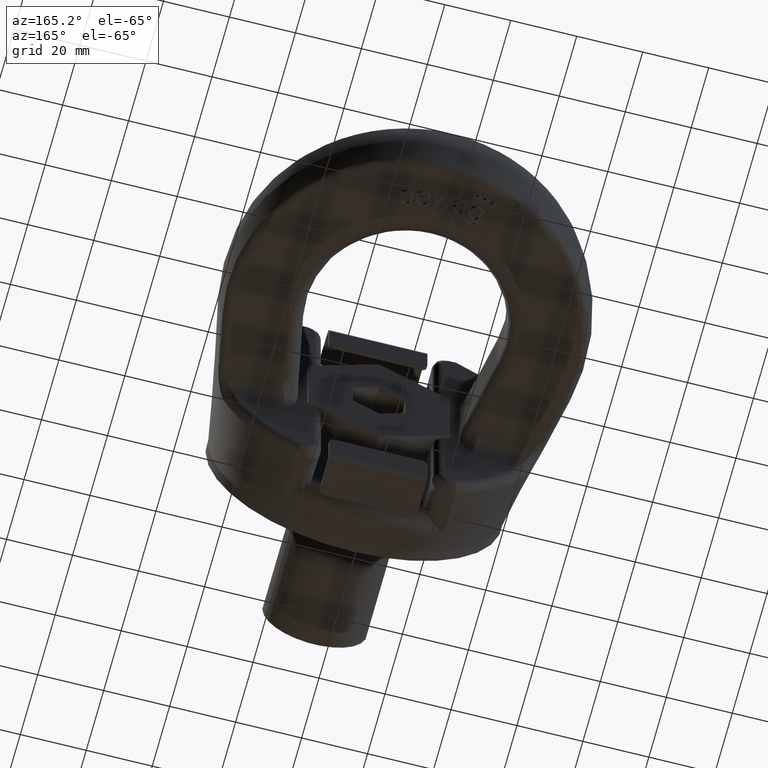
[diagram: clean part render]
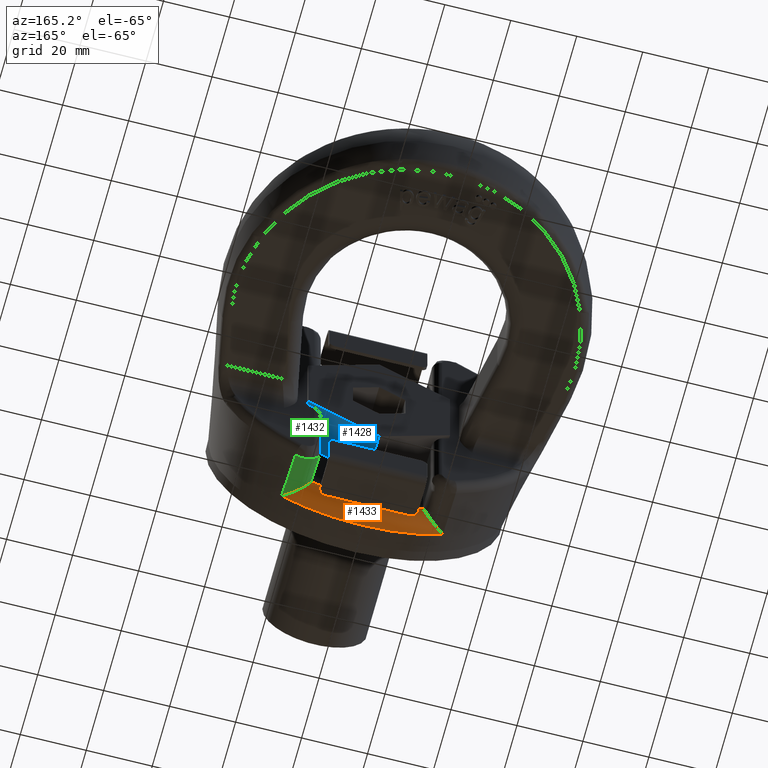
[diagram: same view with three faces highlighted in distinct colors, each labeled with its STEP entity id]
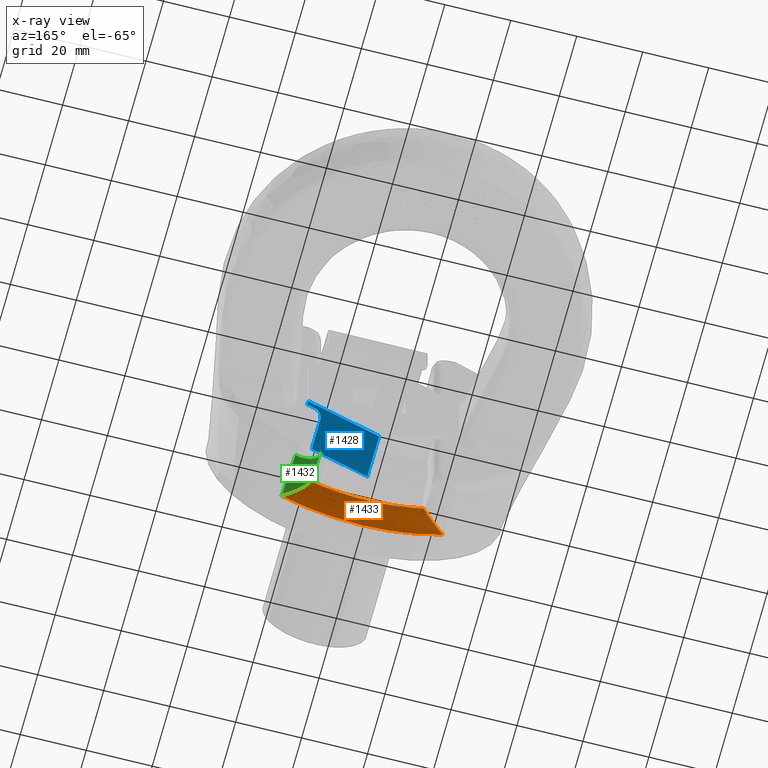
[diagram: x-ray of the same camera — body ghosted, the three highlighted faces saturated]
A machine part, auxiliary view with three faces highlighted in distinct colors.
The next image is the same camera in x-ray (body ghosted, the three faces saturated) — at least one of them is partly hidden behind the body in this view.
Their STEP definitions:

[orange] entity #1433 — the highlighted toroidal blend (fillet) surface has major radius 41.385 mm and minor (blend) radius 5 mm.
#1019=TOROIDAL_SURFACE('',#5260,41.3850144540039,5.);
#1201=FACE_OUTER_BOUND('',#1964,.T.);
#1433=ADVANCED_FACE('',(#1201),#1019,.T.);
#1678=CIRCLE('',#5136,46.2902123631855);
#1714=CIRCLE('',#5251,41.3850144540039);
#1964=EDGE_LOOP('',(#3373,#3374,#3375,#3376));
#3373=ORIENTED_EDGE('',*,*,#4641,.T.);
#3374=ORIENTED_EDGE('',*,*,#4628,.F.);
#3375=ORIENTED_EDGE('',*,*,#4643,.T.);
#3376=ORIENTED_EDGE('',*,*,#4377,.F.);
#3987=VERTEX_POINT('',#6788);
#3988=VERTEX_POINT('',#6790);
#4144=VERTEX_POINT('',#8346);
#4145=VERTEX_POINT('',#8348);
#4377=EDGE_CURVE('',#3987,#3988,#1678,.T.);
#4628=EDGE_CURVE('',#4144,#4145,#1714,.T.);
#4641=EDGE_CURVE('',#3987,#4145,#5021,.T.);
#4643=EDGE_CURVE('',#4144,#3988,#5023,.T.);
#5021=B_SPLINE_CURVE_WITH_KNOTS('',3,(#8386,#8387,#8388,#8389,#8390,#8391,
#8392,#8393),.UNSPECIFIED.,.F.,.F.,(4,2,2,4),(0.,0.5,0.75,1.),
 .UNSPECIFIED.);
#5023=B_SPLINE_CURVE_WITH_KNOTS('',3,(#8412,#8413,#8414,#8415,#8416,#8417,
#8418,#8419),.UNSPECIFIED.,.F.,.F.,(4,2,2,4),(0.,0.25,0.5,1.),
 .UNSPECIFIED.);
#5136=AXIS2_PLACEMENT_3D('',#6789,#5485,#5486);
#5251=AXIS2_PLACEMENT_3D('',#8347,#5850,#5851);
#5260=AXIS2_PLACEMENT_3D('',#8432,#5875,#5876);
#5485=DIRECTION('',(-1.02798428206033E-16,-1.,-2.40847540385218E-31));
#5486=DIRECTION('',(-1.,1.12424855325773E-16,-2.34291072916505E-15));
#5850=DIRECTION('',(1.02798428206033E-16,1.,2.40847540385218E-31));
#5851=DIRECTION('',(1.,-8.38334116280092E-17,2.34291072916505E-15));
#5875=DIRECTION('',(1.02798428206033E-16,1.,2.40847540385218E-31));
#5876=DIRECTION('',(1.,-1.1219508044114E-16,2.34291072916505E-15));
#6788=CARTESIAN_POINT('',(-24.4677550268854,9.53096260559235,-39.2951997650238));
#6789=CARTESIAN_POINT('',(1.16751939427715E-13,9.53096260559233,2.73539371536021E-28));
#6790=CARTESIAN_POINT('',(24.4677550268856,9.53096260559236,-39.2951997650238));
#8346=CARTESIAN_POINT('',(17.0679975104548,15.5,-37.7014970835539));
#8347=CARTESIAN_POINT('',(1.49423072098338E-13,15.5,3.50084918803998E-28));
#8348=CARTESIAN_POINT('',(-17.0679975104546,15.5,-37.7014970835538));
#8386=CARTESIAN_POINT('',(-24.4677550268854,9.53096260559239,-39.2951997650238));
#8387=CARTESIAN_POINT('',(-23.3774404571702,10.6971230609666,-40.245489589126));
#8388=CARTESIAN_POINT('',(-22.032508373899,11.9571720730814,-40.8216725920729));
#8389=CARTESIAN_POINT('',(-19.8801882544539,13.750688619276,-40.652539358086));
#8390=CARTESIAN_POINT('',(-19.1474371269762,14.324577038124,-40.4122075792247));
#8391=CARTESIAN_POINT('',(-17.853311421512,15.2145060452877,-39.4026762827005));
#8392=CARTESIAN_POINT('',(-17.3213765914619,15.5,-38.6100426878768));
#8393=CARTESIAN_POINT('',(-17.0679975104546,15.5,-37.7014970835538));
#8412=CARTESIAN_POINT('',(17.0679975104548,15.5,-37.7014970835539));
#8413=CARTESIAN_POINT('',(17.3213765914621,15.5,-38.6100426878769));
#8414=CARTESIAN_POINT('',(17.8533114215122,15.2145060452877,-39.4026762827005));
#8415=CARTESIAN_POINT('',(19.1474371269764,14.324577038124,-40.4122075792247));
#8416=CARTESIAN_POINT('',(19.8801882544541,13.750688619276,-40.6525393580861));
#8417=CARTESIAN_POINT('',(22.0325083738993,11.9571720730815,-40.821672592073));
#8418=CARTESIAN_POINT('',(23.3774404582691,10.6971230622988,-40.2454895887519));
#8419=CARTESIAN_POINT('',(24.4677550268856,9.5309626055924,-39.2951997650239));
#8432=CARTESIAN_POINT('',(1.48909079957308E-13,10.5,3.48880681102072E-28));

[blue] entity #1428 — the highlighted planar face has unit normal (-0.5, 0, 0.866).
#1053=ELLIPSE('',#5256,2.88675134594812,2.5);
#1196=FACE_OUTER_BOUND('',#1959,.T.);
#1428=ADVANCED_FACE('',(#1196),#1610,.F.);
#1610=PLANE('',#5257);
#1959=EDGE_LOOP('',(#3348,#3349,#3350,#3351,#3352,#3353,#3354));
#2114=LINE('',#6532,#2394);
#2147=LINE('',#6757,#2427);
#2155=LINE('',#6904,#2435);
#2253=LINE('',#8327,#2561);
#2258=LINE('',#8358,#2566);
#2261=LINE('',#8373,#2569);
#2394=VECTOR('',#5424,1.);
#2427=VECTOR('',#5477,1.);
#2435=VECTOR('',#5539,1.);
#2561=VECTOR('',#5845,1.);
#2566=VECTOR('',#5854,1.);
#2569=VECTOR('',#5863,1.);
#3348=ORIENTED_EDGE('',*,*,#4370,.F.);
#3349=ORIENTED_EDGE('',*,*,#4638,.T.);
#3350=ORIENTED_EDGE('',*,*,#4623,.F.);
#3351=ORIENTED_EDGE('',*,*,#4632,.F.);
#3352=ORIENTED_EDGE('',*,*,#4637,.T.);
#3353=ORIENTED_EDGE('',*,*,#4320,.T.);
#3354=ORIENTED_EDGE('',*,*,#4409,.F.);
#3931=VERTEX_POINT('',#6530);
#3933=VERTEX_POINT('',#6533);
#3980=VERTEX_POINT('',#6756);
#3981=VERTEX_POINT('',#6758);
#4140=VERTEX_POINT('',#8328);
#4141=VERTEX_POINT('',#8329);
#4148=VERTEX_POINT('',#8357);
#4320=EDGE_CURVE('',#3933,#3931,#2114,.T.);
#4370=EDGE_CURVE('',#3980,#3981,#2147,.T.);
#4409=EDGE_CURVE('',#3981,#3931,#2155,.T.);
#4623=EDGE_CURVE('',#4140,#4141,#2253,.T.);
#4632=EDGE_CURVE('',#4148,#4140,#2258,.T.);
#4637=EDGE_CURVE('',#4148,#3933,#2261,.T.);
#4638=EDGE_CURVE('',#3980,#4141,#1053,.T.);
#5256=AXIS2_PLACEMENT_3D('',#8375,#5866,#5867);
#5257=AXIS2_PLACEMENT_3D('',#8376,#5868,#5869);
#5424=DIRECTION('',(0.866025403784439,0.,0.499999999999999));
#5477=DIRECTION('',(0.866025403784439,-7.92709375920655E-16,0.499999999999999));
#5539=DIRECTION('',(0.,1.,0.));
#5845=DIRECTION('',(-2.77555756156289E-16,1.,-1.60246890531963E-16));
#5854=DIRECTION('',(0.866025403784439,-8.90260502955356E-17,0.499999999999999));
#5863=DIRECTION('',(0.,1.,0.));
#5866=DIRECTION('',(-0.499999999999999,0.,0.866025403784439));
#5867=DIRECTION('',(-0.866025403784439,0.,-0.499999999999999));
#5868=DIRECTION('',(-0.499999999999999,0.,0.866025403784439));
#5869=DIRECTION('',(0.866025403784439,0.,0.499999999999999));
#6530=CARTESIAN_POINT('',(21.5,29.,-12.4130307875769));
#6532=CARTESIAN_POINT('',(6.17179597061406E-14,29.,-24.8260615751538));
#6533=CARTESIAN_POINT('',(6.16346929792937E-14,29.,-24.8260615751538));
#6756=CARTESIAN_POINT('',(19.375,28.,-13.6399001096049));
#6757=CARTESIAN_POINT('',(2.89447477316185,28.,-23.1549357857063));
#6758=CARTESIAN_POINT('',(21.5,28.,-12.4130307875769));
#6904=CARTESIAN_POINT('',(21.5,0.399999999999991,-12.4130307875769));
#8327=CARTESIAN_POINT('',(16.875,28.,-15.0832757825789));
#8328=CARTESIAN_POINT('',(16.875,15.5,-15.083275782579));
#8329=CARTESIAN_POINT('',(16.875,25.5,-15.0832757825789));
#8357=CARTESIAN_POINT('',(6.16346929792937E-14,15.5,-24.8260615751538));
#8358=CARTESIAN_POINT('',(-2.79101846447915,15.5,-26.4374568369341));
#8373=CARTESIAN_POINT('',(6.16346929792937E-14,0.399999999999991,-24.8260615751538));
#8375=CARTESIAN_POINT('',(19.375,25.5,-13.6399001096049));
#8376=CARTESIAN_POINT('',(6.17179597061406E-14,0.399999999999991,-24.8260615751538));

[green] entity #1432 — the highlighted face is a freeform B-spline surface patch.
#1035=(
BOUNDED_SURFACE()
B_SPLINE_SURFACE(3,2,((#8420,#8421,#8422),(#8423,#8424,#8425),(#8426,#8427,
#8428),(#8429,#8430,#8431)),.UNSPECIFIED.,.F.,.F.,.F.)
B_SPLINE_SURFACE_WITH_KNOTS((4,4),(3,3),(0.,1.),(0.,1.),.UNSPECIFIED.)
GEOMETRIC_REPRESENTATION_ITEM()
RATIONAL_B_SPLINE_SURFACE(((1.,0.508671579945976,1.),(1.,0.503139771994118,
1.),(1.,0.497139315636362,1.),(1.,0.490519123888112,1.)))
REPRESENTATION_ITEM('')
SURFACE()
);
#1200=FACE_OUTER_BOUND('',#1963,.T.);
#1432=ADVANCED_FACE('',(#1200),#1035,.T.);
#1963=EDGE_LOOP('',(#3368,#3369,#3370,#3371,#3372));
#3368=ORIENTED_EDGE('',*,*,#4625,.F.);
#3369=ORIENTED_EDGE('',*,*,#4642,.T.);
#3370=ORIENTED_EDGE('',*,*,#4378,.F.);
#3371=ORIENTED_EDGE('',*,*,#4643,.F.);
#3372=ORIENTED_EDGE('',*,*,#4627,.F.);
#3988=VERTEX_POINT('',#6790);
#3989=VERTEX_POINT('',#6798);
#4142=VERTEX_POINT('',#8331);
#4143=VERTEX_POINT('',#8339);
#4144=VERTEX_POINT('',#8346);
#4378=EDGE_CURVE('',#3988,#3989,#4890,.T.);
#4625=EDGE_CURVE('',#4142,#4143,#5016,.T.);
#4627=EDGE_CURVE('',#4143,#4144,#5017,.T.);
#4642=EDGE_CURVE('',#4142,#3989,#5022,.T.);
#4643=EDGE_CURVE('',#4144,#3988,#5023,.T.);
#4890=B_SPLINE_CURVE_WITH_KNOTS('',3,(#6791,#6792,#6793,#6794,#6795,#6796,
#6797),.UNSPECIFIED.,.F.,.F.,(4,3,4),(0.,0.763136517417493,1.),
 .UNSPECIFIED.);
#5016=B_SPLINE_CURVE_WITH_KNOTS('',3,(#8332,#8333,#8334,#8335,#8336,#8337,
#8338),.UNSPECIFIED.,.F.,.F.,(4,3,4),(0.,0.318465065066661,1.),
 .UNSPECIFIED.);
#5017=B_SPLINE_CURVE_WITH_KNOTS('',3,(#8342,#8343,#8344,#8345),
 .UNSPECIFIED.,.F.,.F.,(4,4),(0.,1.),.UNSPECIFIED.);
#5022=B_SPLINE_CURVE_WITH_KNOTS('',3,(#8406,#8407,#8408,#8409,#8410,#8411),
 .UNSPECIFIED.,.F.,.F.,(4,2,4),(0.,0.5,1.),.UNSPECIFIED.);
#5023=B_SPLINE_CURVE_WITH_KNOTS('',3,(#8412,#8413,#8414,#8415,#8416,#8417,
#8418,#8419),.UNSPECIFIED.,.F.,.F.,(4,2,2,4),(0.,0.25,0.5,1.),
 .UNSPECIFIED.);
#6790=CARTESIAN_POINT('',(24.4677550268856,9.53096260559236,-39.2951997650238));
#6791=CARTESIAN_POINT('',(24.4677550268856,9.53096260559236,-39.2951997650238));
#6792=CARTESIAN_POINT('',(24.4190475273708,13.4664040885083,-40.2413841021239));
#6793=CARTESIAN_POINT('',(24.37304120885,17.4048055644307,-41.1754498527761));
#6794=CARTESIAN_POINT('',(24.3293374692233,21.3454807495504,-42.0998447652797));
#6795=CARTESIAN_POINT('',(24.3157725952295,22.5685971874901,-42.386760727524));
#6796=CARTESIAN_POINT('',(24.3024301123118,23.7919361585794,-42.6727400397749));
#6797=CARTESIAN_POINT('',(24.2892995982876,25.0154813027962,-42.957842592588));
#6798=CARTESIAN_POINT('',(24.2892995982876,25.0154813027962,-42.957842592588));
#8331=CARTESIAN_POINT('',(16.8750000000001,25.5,-38.5779360782074));
#8332=CARTESIAN_POINT('',(16.8750000000001,25.5,-38.5779360782074));
#8333=CARTESIAN_POINT('',(16.8750000000001,24.4380515046055,-38.3367648134249));
#8334=CARTESIAN_POINT('',(16.8750000000001,23.3762216505783,-38.0950704687822));
#8335=CARTESIAN_POINT('',(16.8750000000001,22.3145181439581,-37.8528229716687));
#8336=CARTESIAN_POINT('',(16.8750000000001,20.0424077653802,-37.3343985255366));
#8337=CARTESIAN_POINT('',(16.8750000000001,17.7708727592398,-36.8134440829263));
#8338=CARTESIAN_POINT('',(16.8750000000001,15.5,-36.289625039619));
#8339=CARTESIAN_POINT('',(16.8750000000001,15.5,-36.289625039619));
#8342=CARTESIAN_POINT('',(16.8750000000001,15.5,-36.289625039619));
#8343=CARTESIAN_POINT('',(16.8750000000001,15.5,-36.7646257071608));
#8344=CARTESIAN_POINT('',(16.9403965619818,15.5,-37.2439562306085));
#8345=CARTESIAN_POINT('',(17.0679975104548,15.5,-37.7014970835539));
#8346=CARTESIAN_POINT('',(17.0679975104548,15.5,-37.7014970835539));
#8406=CARTESIAN_POINT('',(16.8750000000001,25.5,-38.5779360782074));
#8407=CARTESIAN_POINT('',(16.8750000000001,25.3076070549584,-40.315955234628));
#8408=CARTESIAN_POINT('',(17.8326645582309,25.1219859759125,-41.9944555959952));
#8409=CARTESIAN_POINT('',(20.8145988898917,24.9263228935749,-43.764322423485));
#8410=CARTESIAN_POINT('',(22.7601127380959,24.9222354254932,-43.8013163927756));
#8411=CARTESIAN_POINT('',(24.2892995982877,25.0154813027965,-42.957842592588));
#8412=CARTESIAN_POINT('',(17.0679975104548,15.5,-37.7014970835539));
#8413=CARTESIAN_POINT('',(17.3213765914621,15.5,-38.6100426878769));
#8414=CARTESIAN_POINT('',(17.8533114215122,15.2145060452877,-39.4026762827005));
#8415=CARTESIAN_POINT('',(19.1474371269764,14.324577038124,-40.4122075792247));
#8416=CARTESIAN_POINT('',(19.8801882544541,13.750688619276,-40.6525393580861));
#8417=CARTESIAN_POINT('',(22.0325083738993,11.9571720730815,-40.821672592073));
#8418=CARTESIAN_POINT('',(23.3774404582691,10.6971230622988,-40.2454895887519));
#8419=CARTESIAN_POINT('',(24.4677550268856,9.5309626055924,-39.2951997650239));
#8420=CARTESIAN_POINT('',(24.2875322375527,25.1802905246477,-42.9962397780197));
#8421=CARTESIAN_POINT('',(16.8750000000001,24.276768561077,-46.9783968763173));
#8422=CARTESIAN_POINT('',(16.8750000000001,26.1493279190553,-38.7253318264233));
#8423=CARTESIAN_POINT('',(24.3437995619142,19.9294284896675,-41.7730740114146));
#8424=CARTESIAN_POINT('',(16.8750000000001,18.926991323192,-45.893263927034));
#8425=CARTESIAN_POINT('',(16.8750000000001,20.8984680404762,-37.5339505948795));
#8426=CARTESIAN_POINT('',(24.4039527570385,14.6813921737444,-40.5337688492726));
#8427=CARTESIAN_POINT('',(16.8750000000001,13.6205086169783,-44.8177973553208));
#8428=CARTESIAN_POINT('',(16.8750000000001,15.6504328487965,-36.3300543681428));
#8429=CARTESIAN_POINT('',(24.4689098910005,9.43769408013931,-39.2727731249282));
#8430=CARTESIAN_POINT('',(16.8750000000001,8.39301347042255,-43.7610002867193));
#8431=CARTESIAN_POINT('',(16.8750000000001,10.4067314745469,-35.1095294369357));